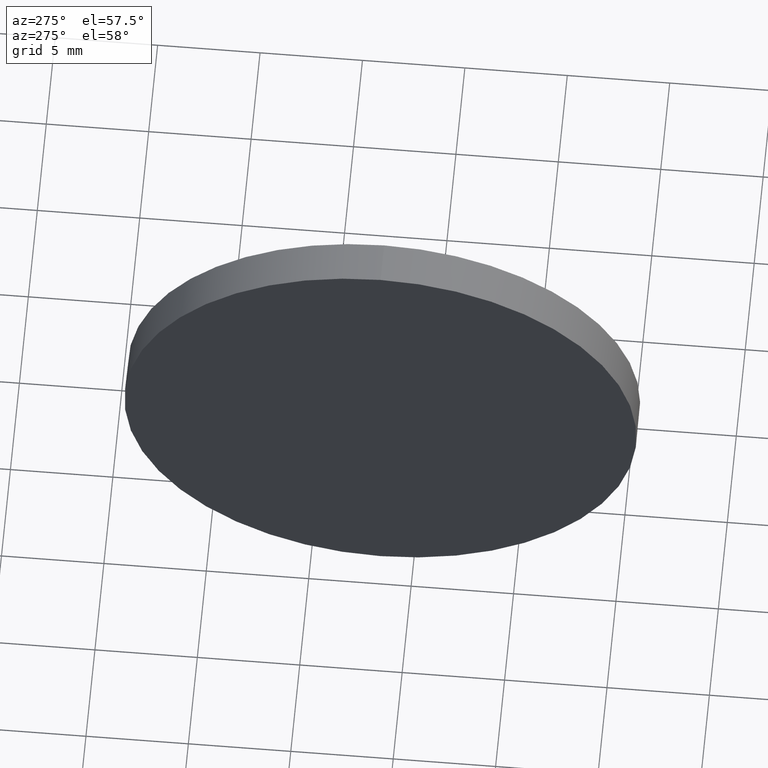
[diagram: clean part render]
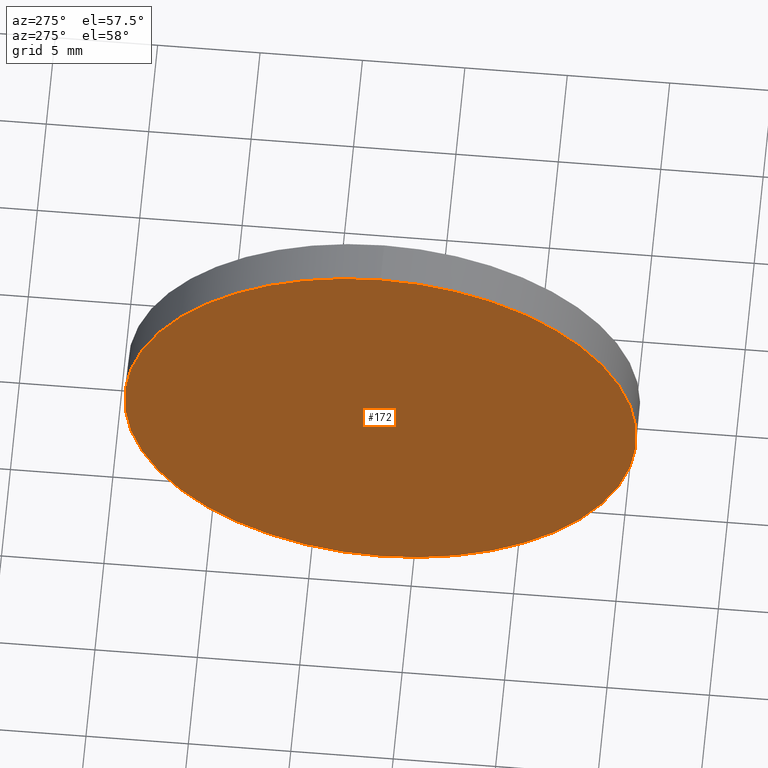
[diagram: same view with one face highlighted and labeled with its STEP entity id]
A machine part, auxiliary view. The second image highlights one B-rep face of the part: STEP entity #172.
In plain terms, the highlighted planar face has unit normal (1, 0, 0).
Its self-contained STEP definition (entity closure, byte-faithful):
#20 = CARTESIAN_POINT ( 'NONE',  ( 846.2559013236141300, 251.6067305368113700, 12.50000000000001100 ) ) ;
#24 = ORIENTED_EDGE ( 'NONE', *, *, #121, .T. ) ;
#32 = EDGE_CURVE ( 'NONE', #52, #146, #124, .T. ) ;
#46 = DIRECTION ( 'NONE',  ( -1.000000000000000000, -0.0000000000000000000, -0.0000000000000000000 ) ) ;
#52 = VERTEX_POINT ( 'NONE', #132 ) ;
#58 = AXIS2_PLACEMENT_3D ( 'NONE', #160, #46, #73 ) ;
#73 = DIRECTION ( 'NONE',  ( 0.0000000000000000000, 0.0000000000000000000, 1.000000000000000000 ) ) ;
#74 = AXIS2_PLACEMENT_3D ( 'NONE', #168, #85, #80 ) ;
#79 = CIRCLE ( 'NONE', #101, 12.50000000000001100 ) ;
#80 = DIRECTION ( 'NONE',  ( 0.0000000000000000000, 0.0000000000000000000, -1.000000000000000000 ) ) ;
#83 = PLANE ( 'NONE',  #74 ) ;
#85 = DIRECTION ( 'NONE',  ( 1.000000000000000000, 0.0000000000000000000, 0.0000000000000000000 ) ) ;
#101 = AXIS2_PLACEMENT_3D ( 'NONE', #113, #152, #153 ) ;
#113 = CARTESIAN_POINT ( 'NONE',  ( 846.2559013236141300, 251.6067305368113700, 0.0000000000000000000 ) ) ;
#121 = EDGE_CURVE ( 'NONE', #146, #52, #79, .T. ) ;
#124 = CIRCLE ( 'NONE', #58, 12.50000000000001100 ) ;
#132 = CARTESIAN_POINT ( 'NONE',  ( 846.2559013236141300, 251.6067305368113700, -12.50000000000001100 ) ) ;
#146 = VERTEX_POINT ( 'NONE', #20 ) ;
#148 = FACE_OUTER_BOUND ( 'NONE', #162, .T. ) ;
#152 = DIRECTION ( 'NONE',  ( -1.000000000000000000, -0.0000000000000000000, -0.0000000000000000000 ) ) ;
#153 = DIRECTION ( 'NONE',  ( 0.0000000000000000000, 0.0000000000000000000, 1.000000000000000000 ) ) ;
#160 = CARTESIAN_POINT ( 'NONE',  ( 846.2559013236141300, 251.6067305368113700, 0.0000000000000000000 ) ) ;
#162 = EDGE_LOOP ( 'NONE', ( #24, #178 ) ) ;
#168 = CARTESIAN_POINT ( 'NONE',  ( 846.2559013236141300, 251.6067305368113700, 0.0000000000000000000 ) ) ;
#172 = ADVANCED_FACE ( 'NONE', ( #148 ), #83, .F. ) ;
#178 = ORIENTED_EDGE ( 'NONE', *, *, #32, .T. ) ;